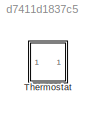
MODEL slx_d7411d1837c5
KIND library
CONFIG AbsTol = auto
CONFIG EnableMultiTasking = off
CONFIG FixedStep = auto
CONFIG MaxStep = auto
CONFIG MinStep = auto
CONFIG RelTol = 1e-3
CONFIG SampleTimeConstraint = Unconstrained
CONFIG SolverName = VariableStepAuto
CONFIG StartTime = 0.0
CONFIG StopTime = 10.0
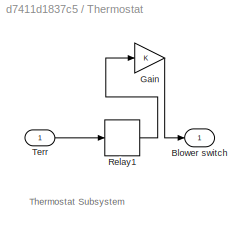
BLOCK [SubSystem] Thermostat
BLOCK [Outport] Thermostat/Blower switch
  InitialOutput = 0
  VectorParamsAs1DForOutWhenUnconnected = off
BLOCK [Gain] Thermostat/Gain
BLOCK [Relay] Thermostat/Relay1
  OffSwitchValue = -2
  OnSwitchValue = 2
BLOCK [Inport] Thermostat/Terr
ANNOTATION Thermostat: Thermostat Subsystem
LINE Thermostat/Gain:1 -> Thermostat/Blower switch:1
LINE Thermostat/Relay1:1 -> Thermostat/Gain:1
LINE Thermostat/Terr:1 -> Thermostat/Relay1:1
